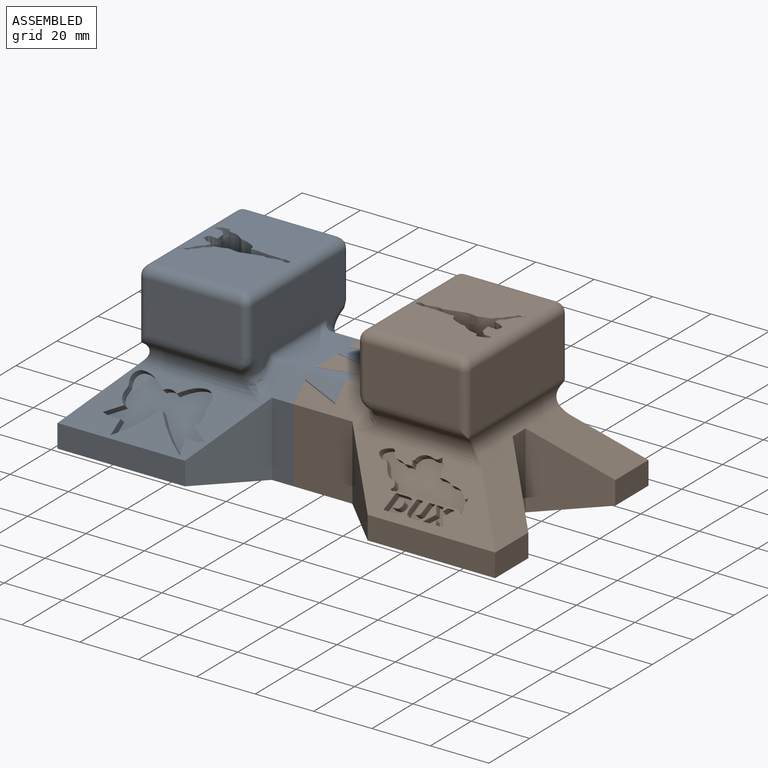
[diagram: assembled view]
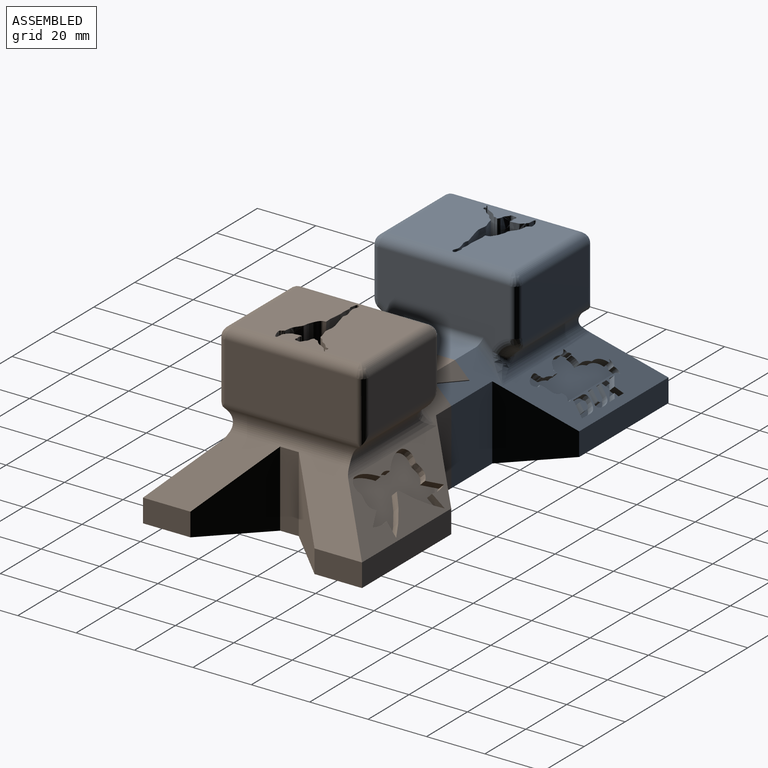
[diagram: assembled view, second angle]
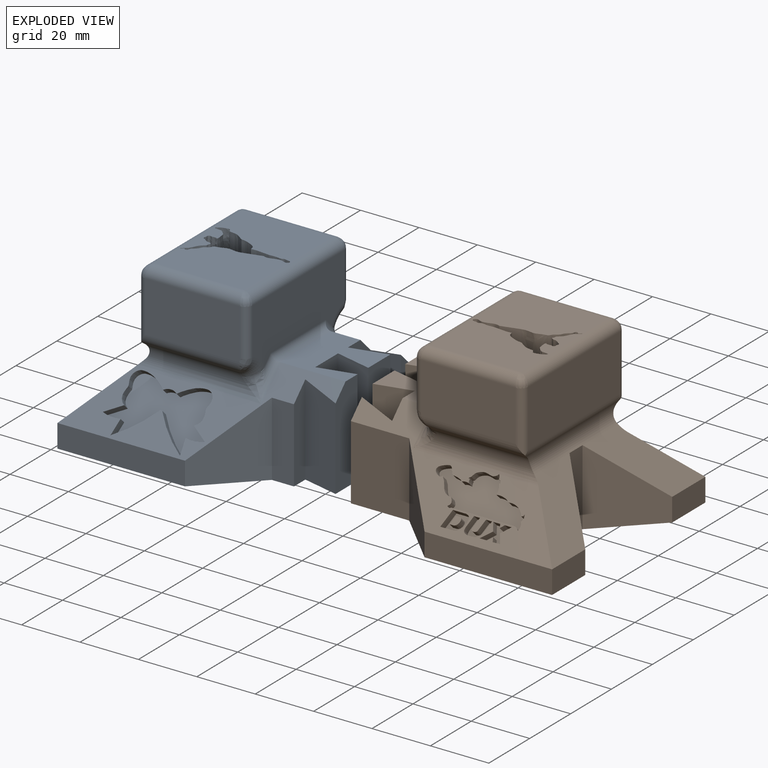
[diagram: exploded view]
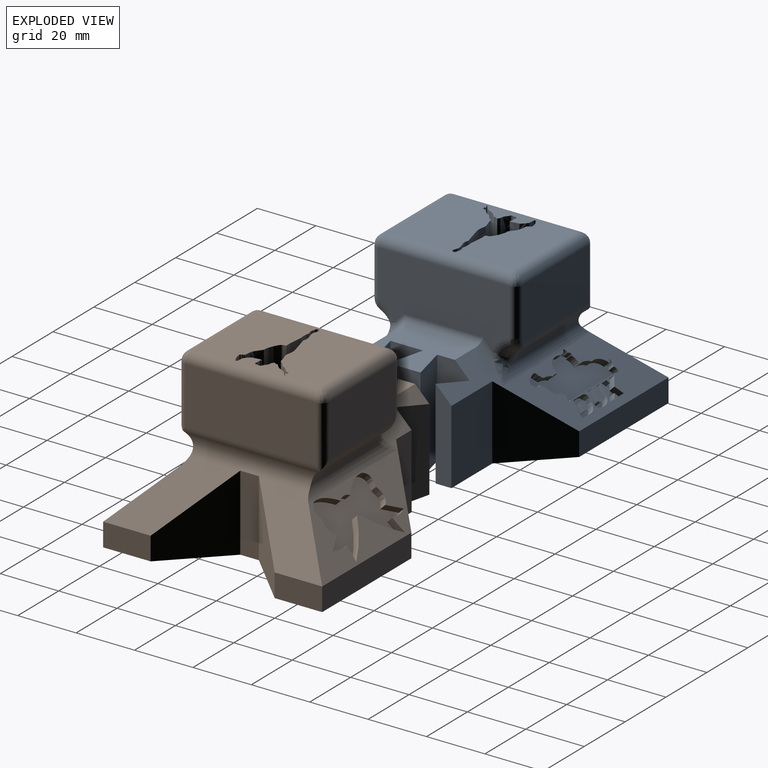
[diagram: exploded view, second angle]
ASSEMBLY  parts=2 mates=3
PART A: 148 faces, bbox 75x81.2x57.2 mm
  f0: plane 81.18x75mm, normal (0,0,-1), area 4238.1mm2, adj f6,f8,f9,f10,f12,f13,f36,f37
  f1: plane 30.58x22.31mm, normal (0,0,1), area 588mm2, adj f3,f22,f24,f134,f143,f144,f145,f146
  f2: plane 30.56x30.5mm, normal (0,0,1), area 575.1mm2, adj f3,f22,f23,f134,f135,f136,f137,f138
  f3: cylinder r=3.5mm len=45mm, axis (-1,0,0), area 243.4mm2, adj f1,f2,f15,f30,f32,f134
  f4: plane 81.18x25mm, normal (0.71,0,0.71), area 807.4mm2, adj f7,f9,f11,f12,f21,f33,f37,f49
  f5: plane 81.18x25mm, normal (-0.71,0,0.71), area 743.3mm2, adj f8,f10,f11,f14,f19,f35,f54,f55
  f6: plane 16.25x7.94mm, normal (0,1,0), area 129mm2, adj f0,f7,f12,f61
  f7: plane 34.31x18.06mm, normal (0,0.71,0.71), area 416.3mm2, adj f4,f6,f20,f21,f61
  f8: plane 31.01x5.58mm, normal (0,-1,0), area 157.4mm2, adj f0,f5,f55,f57
  f9: plane 30.84x5.41mm, normal (0,-1,0), area 152.1mm2, adj f0,f4,f49,f58
  f10: plane 43.68x7.94mm, normal (-1,0,0), area 346.7mm2, adj f0,f5,f13,f56
  f11: plane 25x22.43mm, normal (0,0,1), area 402.1mm2, adj f4,f5,f34,f36,f37,f50,f51,f52
  f12: plane 43.68x7.94mm, normal (1,0,0), area 346.7mm2, adj f0,f4,f6,f59
  f13: plane 16.25x7.94mm, normal (0,1,0), area 129mm2, adj f0,f10,f14,f62
  f14: plane 34.31x18.06mm, normal (0,0.71,0.71), area 416.3mm2, adj f5,f13,f19,f20,f62
  f15: plane 45x21.17mm, normal (0,-1,0), area 825.9mm2, adj f3,f29,f31,f33,f34,f35,f41,f46
  f16: plane 45x19.46mm, normal (0,1,0), area 875.6mm2, adj f22,f25,f27,f48
  f17: plane 32.5x17.37mm, normal (1,0,0), area 564.3mm2, adj f23,f25,f29,f43,f44
  f18: plane 32.5x17.37mm, normal (-1,0,0), area 564.3mm2, adj f24,f27,f31,f38,f40
  f19: cylinder r=5.5mm len=43.09mm, axis (0,-1,0), area 339.2mm2, adj f5,f14,f20,f38,f41,f42
  f20: cylinder r=5.5mm len=45.6mm, axis (1,0,0), area 276.3mm2, adj f7,f14,f19,f21,f38,f43,f48,f60
  f21: cylinder r=5.5mm len=43.09mm, axis (0,-1,0), area 339.2mm2, adj f4,f7,f20,f43,f46,f47,f114
  f22: cylinder r=3.5mm len=45mm, axis (1,0,0), area 243.4mm2, adj f1,f2,f16,f26,f28
  f23: cylinder r=3.5mm len=32.5mm, axis (0,1,0), area 174.7mm2, adj f2,f17,f26,f30
  f24: cylinder r=3.5mm len=32.5mm, axis (0,-1,0), area 174.7mm2, adj f1,f18,f28,f32
  f25: cylinder r=2.5mm len=20.92mm, axis (0,0,-1), area 76.6mm2, adj f16,f17,f26,f43,f48
  f26: bspline ~4.27x3.5mm, area 14.1mm2, adj f22,f23,f25
  f27: cylinder r=2.5mm len=20.92mm, axis (0,0,1), area 76.6mm2, adj f16,f18,f28,f38,f48
  f28: bspline ~3.7x3.5mm, area 14.1mm2, adj f22,f24,f27
  f29: cylinder r=2.5mm len=16.17mm, axis (0,0,1), area 63.5mm2, adj f15,f17,f30,f44
  f30: bspline ~4.27x3.5mm, area 14.1mm2, adj f3,f23,f29
  f31: cylinder r=2.5mm len=16.17mm, axis (0,0,-1), area 63.5mm2, adj f15,f18,f32,f40
  f32: bspline ~4.27x3.5mm, area 14.1mm2, adj f3,f24,f31
  f33: cylinder r=2.5mm len=11.84mm, axis (0.71,0,-0.71), area 30mm2, adj f4,f15,f34,f47
  f34: cylinder r=2.5mm len=27.07mm, axis (1,0,0), area 101.1mm2, adj f11,f15,f33,f35
  f35: cylinder r=2.5mm len=11.84mm, axis (-0.71,0,-0.71), area 30mm2, adj f5,f15,f34,f42
  f36: plane 32.94x11.15mm, normal (0,-1,0), area 367.4mm2, adj f0,f11,f52,f53
  f37: plane 32.94x11.15mm, normal (0,-1,0), area 354.5mm2, adj f0,f4,f11,f49,f50
  f38: cylinder r=5mm len=34.51mm, axis (0,-1,0), area 162.5mm2, adj f18,f19,f20,f27,f39,f48
  f39: bspline ~4.97x4.78mm, area 10.7mm2, adj f38,f40,f41
  f40: bspline ~3.98x3mm, area 7.2mm2, adj f18,f31,f39,f41
  f41: torus R=10.5mm, axis (0,1,0), area 38.9mm2, adj f15,f19,f39,f40,f42
  f42: bspline ~9.43x7.5mm, area 35.3mm2, adj f19,f35,f41
  f43: cylinder r=5mm len=34.51mm, axis (0,-1,0), area 162.5mm2, adj f17,f20,f21,f25,f45,f48
  f44: bspline ~3.98x3mm, area 7.2mm2, adj f17,f29,f45,f46
  f45: bspline ~4.46x4.19mm, area 10.7mm2, adj f43,f44,f46
  f46: torus R=10.5mm, axis (0,1,0), area 38.9mm2, adj f15,f21,f44,f45,f47
  f47: bspline ~9.43x7.5mm, area 35.3mm2, adj f21,f33,f46
  f48: cylinder r=5mm len=47.04mm, axis (1,0,0), area 97.4mm2, adj f16,f20,f25,f27,f38,f43
  f49: plane 30.84x12.43mm, normal (-0.97,0.23,0), area 375mm2, adj f0,f4,f9,f37
  f50: plane 32.94x12.43mm, normal (0.97,0.23,0), area 420.9mm2, adj f0,f11,f37,f51
  f51: plane 32.94x10.81mm, normal (0,-1,0), area 356mm2, adj f0,f11,f50,f52
  f52: plane 32.94x12.43mm, normal (-0.97,0.23,0), area 420.9mm2, adj f0,f11,f36,f51
  f53: plane 32.94x12.43mm, normal (0.97,0.23,0), area 420.9mm2, adj f0,f11,f36,f54
  f54: plane 32.94x10.81mm, normal (0,-1,0), area 344mm2, adj f0,f5,f11,f53,f55
  f55: plane 31.01x12.43mm, normal (-0.97,0.23,0), area 377.2mm2, adj f0,f5,f8,f54
  f56: plane 25.44x17.5mm, normal (-0.71,-0.71,0), area 413mm2, adj f0,f5,f10,f57
  f57: plane 25.44x7.58mm, normal (-1,0,0), area 192.7mm2, adj f0,f5,f8,f56
  f58: plane 25.44x20mm, normal (1,0,0), area 508.8mm2, adj f0,f4,f9,f59
  f59: plane 25.44x17.5mm, normal (0.71,-0.71,0), area 413mm2, adj f0,f4,f12,f58
  f60: plane 26x6.38mm, normal (0,1,0), area 165.8mm2, adj f0,f20,f61,f62
  f61: plane 26x18.06mm, normal (-0.71,0.71,0), area 433.4mm2, adj f0,f6,f7,f60
  f62: plane 26x18.06mm, normal (0.71,0.71,0), area 433.4mm2, adj f0,f13,f14,f60
  f63: cylinder r=44.37mm len=11.55mm, axis (-0.71,0,0.71), area 40.2mm2, adj f5,f64,f74,f75
  f64: plane 5.58x5.58mm, normal (-0.1,0.99,-0.1), area 13.6mm2, adj f5,f63,f65,f75
  f65: cylinder r=11.84mm len=6.32mm, axis (-0.71,0,0.71), area 16.1mm2, adj f5,f64,f66,f75
  f66: plane 5.53x4.34mm, normal (-0.59,0.55,-0.59), area 16.5mm2, adj f5,f65,f67,f75
  f67: extruded ~11.55x9.73mm, area 58.5mm2, adj f5,f66,f68,f75
  f68: cylinder r=4mm len=4.68mm, axis (-0.71,0,0.71), area 12.5mm2, adj f5,f67,f69,f75
  f69: extruded ~11.55x9.73mm, area 58.5mm2, adj f5,f68,f70,f75
  f70: plane 5.53x4.34mm, normal (-0.59,-0.55,-0.59), area 16.5mm2, adj f5,f69,f71,f75
  f71: cylinder r=11.84mm len=6.32mm, axis (-0.71,0,0.71), area 16.1mm2, adj f5,f70,f72,f75
  f72: plane 5.58x5.58mm, normal (-0.1,-0.99,-0.1), area 13.6mm2, adj f5,f71,f73,f75
  f73: cylinder r=44.37mm len=11.55mm, axis (-0.71,0,0.71), area 40.2mm2, adj f5,f72,f74,f75
  f74: cylinder r=1.62mm len=1.79mm, axis (-0.71,0,0.71), area 1.7mm2, adj f5,f63,f73,f75
  f75: plane 34.87x14.74mm, normal (-0.71,0,0.71), area 393.9mm2, adj f63,f64,f65,f66,f67,f68,f69,f70
  f76: plane 2.38x1.77mm, normal (0.71,0,-0.71), area 6mm2, adj f4,f77,f87,f88
  f77: plane 3.69x3.69mm, normal (-0.3,0.9,0.3), area 7.5mm2, adj f4,f76,f78,f88
  f78: plane 3.88x3.88mm, normal (0.51,0.69,-0.51), area 10.8mm2, adj f4,f77,f79,f88
  f79: plane 2.54x1.78mm, normal (-0.71,0,0.71), area 6.3mm2, adj f4,f78,f80,f88
  f80: plane 2.8x2.8mm, normal (-0.48,-0.74,0.48), area 4.9mm2, adj f4,f79,f81,f88
  f81: plane 2.8x2.8mm, normal (-0.25,0.93,0.25), area 3.9mm2, adj f4,f80,f82,f88
  f82: plane 2.52x1.77mm, normal (-0.71,0,0.71), area 6.3mm2, adj f4,f81,f83,f88
  f83: plane 3.87x3.87mm, normal (0.32,-0.89,-0.32), area 8.4mm2, adj f4,f82,f84,f88
  f84: plane 3.69x3.69mm, normal (-0.5,-0.71,0.5), area 9.6mm2, adj f4,f83,f85,f88
  f85: plane 2.39x1.77mm, normal (0.71,0,-0.71), area 6mm2, adj f4,f84,f86,f88
  f86: plane 2.63x2.63mm, normal (0.47,0.75,-0.47), area 4.1mm2, adj f4,f85,f87,f88
  f87: plane 2.63x2.63mm, normal (0.24,-0.94,-0.24), area 3.3mm2, adj f4,f76,f86,f88
  f88: plane 8.12x4.03mm, normal (0.71,0,0.71), area 23.2mm2, adj f76,f77,f78,f79,f80,f81,f82,f83
  f89: extruded ~8.02x3.93mm, area 23.8mm2, adj f4,f90,f112,f113,f114
  f90: plane 2.07x2.07mm, normal (0.58,0.56,-0.58), area 1.9mm2, adj f4,f89,f91,f113
  f91: plane 2.06x2.06mm, normal (-0.24,0.94,0.24), area 1.1mm2, adj f4,f90,f92,f113
  f92: plane 1.97x1.97mm, normal (-0.55,-0.62,0.55), area 1.1mm2, adj f4,f91,f93,f113
  f93: cylinder r=2.12mm len=2.78mm, axis (0.71,0,0.71), area 3.7mm2, adj f4,f92,f94,f113
  f94: cylinder r=3.94mm len=2.46mm, axis (0.71,0,0.71), area 6.2mm2, adj f4,f93,f95,f113
  f95: extruded ~3.98x2.78mm, area 10.8mm2, adj f4,f94,f96,f113
  f96: cylinder r=0.99mm len=2.33mm, axis (0.71,0,0.71), area 2.6mm2, adj f4,f95,f97,f113
  f97: extruded ~4.81x4.54mm, area 25.8mm2, adj f4,f96,f98,f113
  f98: extruded ~5.4x5.4mm, area 19.6mm2, adj f4,f97,f99,f113
  f99: extruded ~3.75x3.75mm, area 8.3mm2, adj f4,f98,f100,f113
  f100: cylinder r=1.61mm len=2.03mm, axis (0.71,0,0.71), area 2.6mm2, adj f4,f99,f101,f113
  f101: extruded ~1.96x1.96mm, area 1.2mm2, adj f4,f100,f102,f113
  f102: plane 21.53x1.77mm, normal (-0.71,0,0.71), area 53.8mm2, adj f4,f101,f103,f113
  f103: cylinder r=2.35mm len=2.5mm, axis (0.71,0,0.71), area 5.4mm2, adj f4,f102,f104,f113
  f104: cylinder r=2.42mm len=3.72mm, axis (0.71,0,0.71), area 7.4mm2, adj f4,f103,f105,f113
  f105: cylinder r=2.04mm len=3.49mm, axis (0.71,0,0.71), area 6.6mm2, adj f4,f104,f106,f113
  f106: cylinder r=0.71mm len=2.36mm, axis (0.71,0,0.71), area 3.3mm2, adj f4,f105,f107,f113
  f107: cylinder r=5.46mm len=5.6mm, axis (0.71,0,0.71), area 16.7mm2, adj f4,f106,f108,f113
  f108: cylinder r=6.5mm len=4.8mm, axis (0.71,0,0.71), area 12.7mm2, adj f4,f107,f109,f113
  f109: cylinder r=4.77mm len=4.11mm, axis (0.71,0,0.71), area 8.7mm2, adj f4,f108,f110,f113
  f110: cylinder r=0.84mm len=1.87mm, axis (0.71,0,0.71), area 1.3mm2, adj f4,f109,f111,f113
  f111: cylinder r=1.33mm len=2.46mm, axis (0.71,0,0.71), area 3.9mm2, adj f4,f110,f112,f113
  f112: cylinder r=2.1mm len=2.85mm, axis (0.71,0,0.71), area 4.2mm2, adj f4,f89,f111,f113,f114
  f113: plane 33.47x10.13mm, normal (0.71,0,0.71), area 254.4mm2, adj f89,f90,f91,f92,f93,f94,f95,f96
  f114: plane 0.09x0.04mm, normal (-0.71,0,-0.71), area 0mm2, adj f21,f89,f112
  f115: plane 2.04x1.78mm, normal (0.71,0,-0.71), area 5.1mm2, adj f4,f116,f122,f123
  f116: plane 4.36x4.36mm, normal (0.18,0.97,-0.18), area 9.5mm2, adj f4,f115,f117,f123
  f117: extruded ~2.3x2.3mm, area 7.2mm2, adj f4,f116,f118,f123
  f118: plane 4.37x4.37mm, normal (-0.17,-0.97,0.17), area 9.5mm2, adj f4,f117,f119,f123
  f119: plane 2.03x1.77mm, normal (0.71,0,-0.71), area 5.1mm2, adj f4,f118,f120,f123
  f120: plane 4.47x4.47mm, normal (0.18,0.97,-0.18), area 9.9mm2, adj f4,f119,f121,f123
  f121: extruded ~6.2x3.27mm, area 21.4mm2, adj f4,f120,f122,f123
  f122: plane 4.47x4.47mm, normal (-0.18,-0.97,0.18), area 9.9mm2, adj f4,f115,f121,f123
  f123: plane 7.27x4.27mm, normal (0.71,0,0.71), area 25.4mm2, adj f115,f116,f117,f118,f119,f120,f121,f122
  f124: plane 4.45x1.77mm, normal (0.71,0,-0.71), area 11.1mm2, adj f4,f125,f131,f132
  f125: plane 5.82x5.82mm, normal (0.18,0.97,-0.18), area 14.8mm2, adj f4,f124,f126,f132
  f126: plane 4.37x1.77mm, normal (-0.71,0,0.71), area 10.9mm2, adj f4,f125,f131,f132
  f127: plane 3.78x3.78mm, normal (-0.18,-0.97,0.18), area 7.4mm2, adj f128,f130,f132,f133
  f128: plane 1.77x1.77mm, normal (-0.71,0,0.71), area 3.3mm2, adj f127,f129,f132,f133
  f129: extruded ~3.78x3.78mm, area 10.5mm2, adj f128,f130,f132,f133
  f130: plane 1.77x1.77mm, normal (0.71,0,-0.71), area 3.2mm2, adj f127,f129,f132,f133
  f131: extruded ~5.82x5.82mm, area 20.8mm2, adj f4,f124,f126,f132
  f132: plane 7.62x4.05mm, normal (0.71,0,0.71), area 29.2mm2, adj f124,f125,f126,f127,f128,f129,f130,f131
  f133: plane 2.95x2.02mm, normal (0.71,0,0.71), area 6.4mm2, adj f127,f128,f129,f130
  f134: extruded ~57.15x13.94mm, area 1375.7mm2, adj f0,f1,f2,f3,f135,f147
  f135: extruded ~57.15x5.84mm, area 429.1mm2, adj f0,f2,f134,f136
  f136: extruded ~57.15x5.71mm, area 361.6mm2, adj f0,f2,f135,f137
  f137: extruded ~57.15x4.77mm, area 551.7mm2, adj f0,f2,f136,f138
  f138: extruded ~57.15x4.55mm, area 282.6mm2, adj f0,f2,f137,f139
  f139: extruded ~57.15x4.25mm, area 557.8mm2, adj f0,f2,f138,f140
  f140: extruded ~57.15x5.5mm, area 378.8mm2, adj f0,f2,f139,f141
  f141: extruded ~57.15x0.2mm, area 14.4mm2, adj f0,f2,f140,f142
  f142: plane 57.15x1.74mm, normal (-0.79,-0.61,0), area 125.9mm2, adj f0,f2,f141,f143
  f143: cylinder r=0.15mm len=57.15mm, axis (0,0,1), area 26.2mm2, adj f0,f1,f2,f142,f144
  f144: plane 57.15x0.73mm, normal (0.79,0.61,0), area 53.2mm2, adj f0,f1,f143,f145
  f145: extruded ~57.15x1.62mm, area 163.6mm2, adj f0,f1,f144,f146
  f146: extruded ~57.15x5.03mm, area 397.3mm2, adj f0,f1,f145,f147
  f147: extruded ~57.15x14.82mm, area 871.2mm2, adj f0,f1,f134,f146
PART B: same geometry as A
PLACE A rot(axis=(0,0,1),90deg) t=(-180.6,194.41,35.3)mm
PLACE B rot(axis=(0,0,-1),90deg) t=(-180.67,194.41,35.3)mm fixed
MATE planar A.f51 <-> B.f36  axis (1,0,0) through (-174.42,198.41,51.77)mm
MATE planar A.f1 <-> B.f1  axis (0,0,1) through (-217,182.75,75.99)mm
MATE planar A.f10 <-> B.f12  axis (0,-1,0) through (-233.76,156.91,22.8)mm
